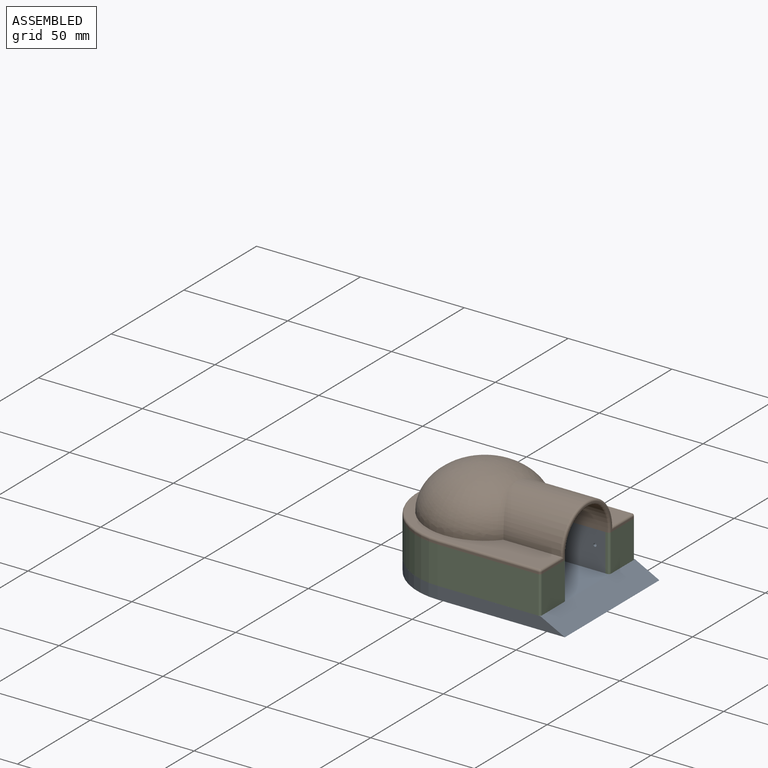
[diagram: assembled view]
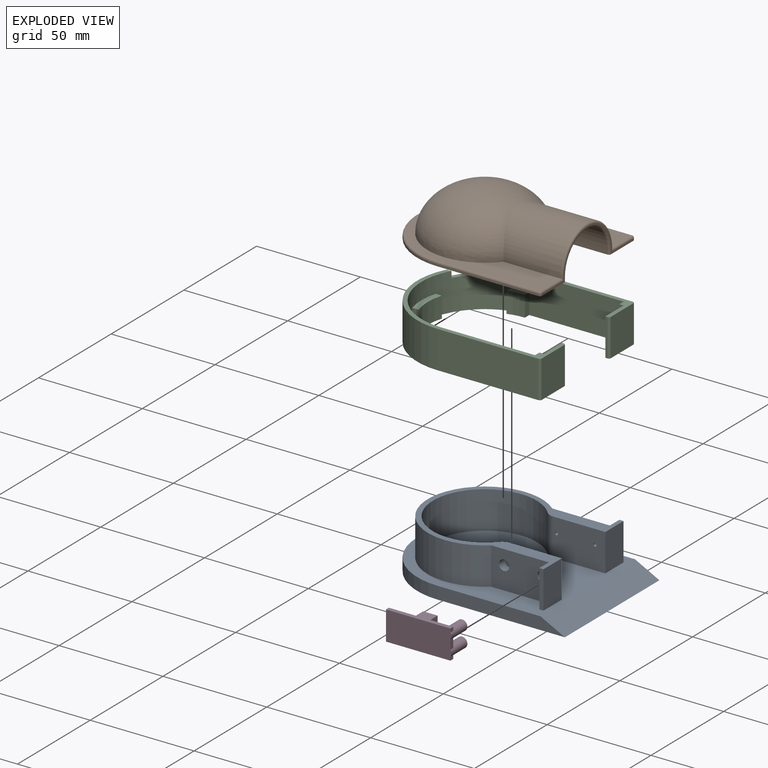
[diagram: exploded view]
GUIDED TOUR — MATED ASSEMBLY (Onshape document 584c455986016b1105d46dea, AutoMate assembly 584c455986016b1105d46dea_77e8dcf5dde47d9424bd23e5_f735e1928083b0ea91f91c92_default)

This assembly has 4 components, labeled P0..P3 below (a component is one placed occurrence of a part; the same part can appear more than once), held together by 3 mates. A mate is a constraint between two components; its type names the relative motion it leaves free:
  FASTENED — locks the two components together rigidly (no relative motion).
Axis/direction vectors are unit vectors and 'through' points are millimeter coordinates, both in the assembly's world frame.

MATES
  1. FASTENED "Fastened 3": P0 <-> P3, direction (0.000, -1.000, 0.000) through (42.50, -17.00, 17.00) mm
  2. FASTENED "Fastened 2": P0 <-> P1, direction (0.000, 0.000, -1.000) through (0.00, 0.00, 24.00) mm
  3. FASTENED "Fastened 1": P2 <-> P0, direction (-1.000, 0.000, 0.000) through (47.50, -21.25, 15.00) mm

ASSEMBLY ORDER
  1. P0 — the base component [order heuristic]
  2. P3 — core [order heuristic]
  3. P2 [order verified]
  4. P1 [order verified]
Order-tag legend:
  [order verified] — this step's position reverses a verified removal order: the component was checked to insert without passing through the ones already placed.
  [order heuristic] — the first 2 components form the assembly's core: parts whose collision-free extraction could not be verified, listed in mate-graph order.

Of the 4 components, 1 carries the full construction recipe — the FeatureScript program that regenerates the part's solid from scratch; the rest are supplied as boundary geometry only.
Each toured component is shown spotlighted twice — in the assembled view, then in the exploded view, where a leader line traces a displaced component back to its assembled socket (saturated green if recipe-attached, orange if geometry-only; every other component desaturated gray) — followed by its recipe or geometry summary and the mates that hold it.
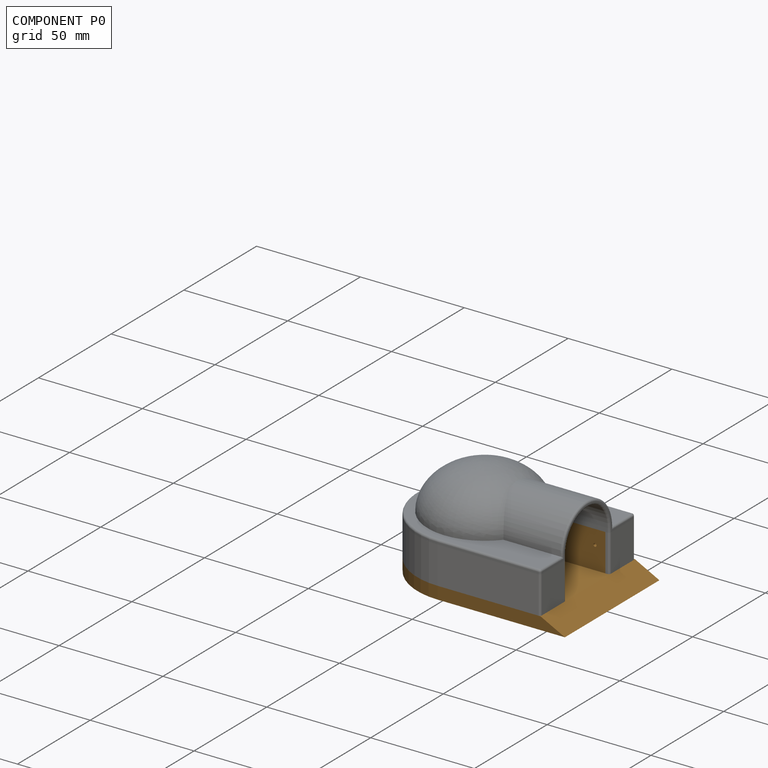
[diagram: component P0 — assembled]
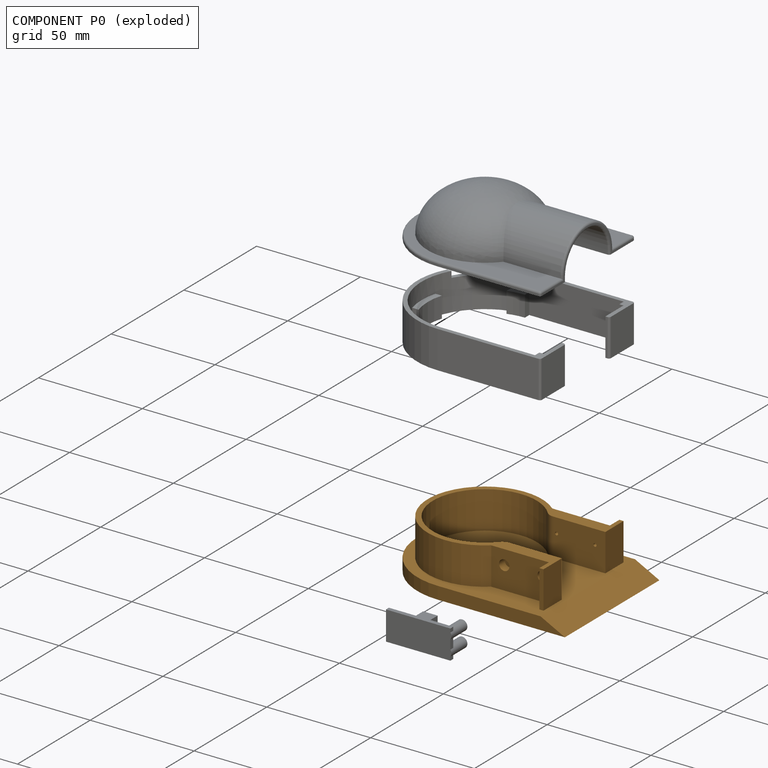
[diagram: component P0 — exploded]
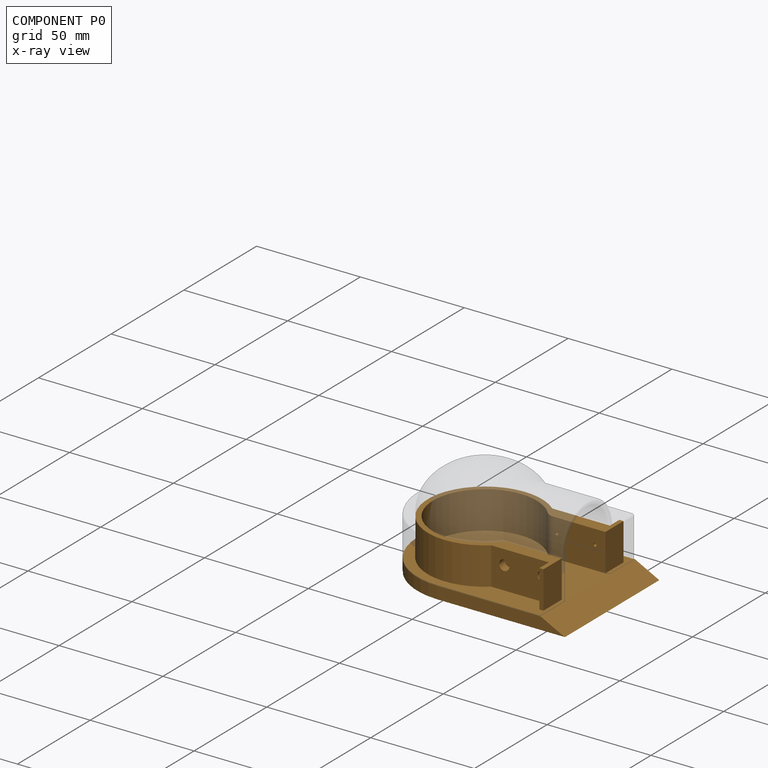
[diagram: component P0 — x-ray view]
COMPONENT P0 — geometry summary (no construction recipe available for this part):
  bounding box: 93.8 x 65.0 x 24.0 mm
  B-rep topology: 1 solid, 36 faces, 176 edges
  volume: 42210 mm^3 (29% of its bounding box)
  symmetry: mirror-symmetric across its y mid-plane
Held by: FASTENED mate "Fastened 3" to P3; FASTENED mate "Fastened 2" to P1; FASTENED mate "Fastened 1" to P2.
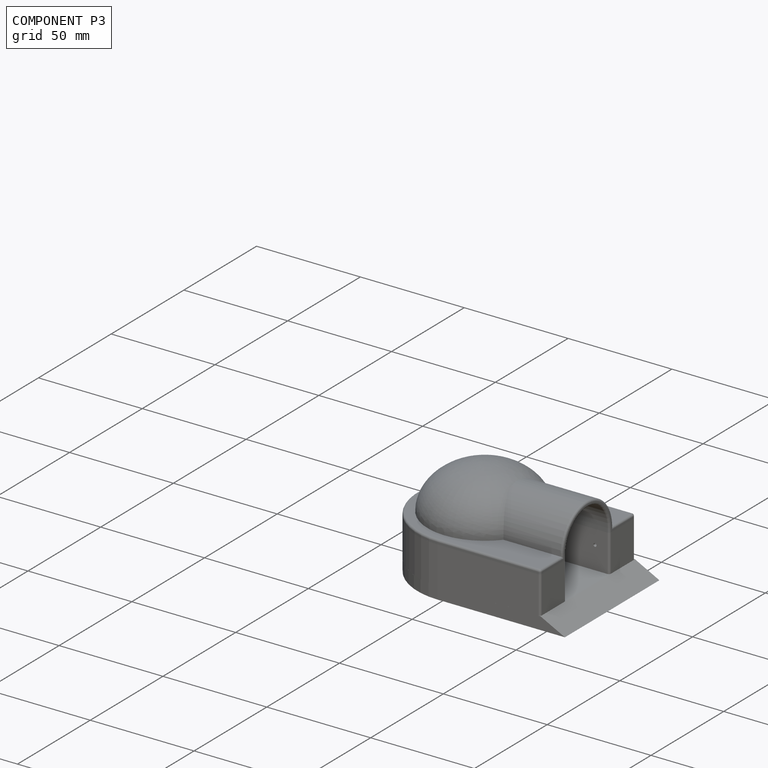
[diagram: component P3 — assembled]
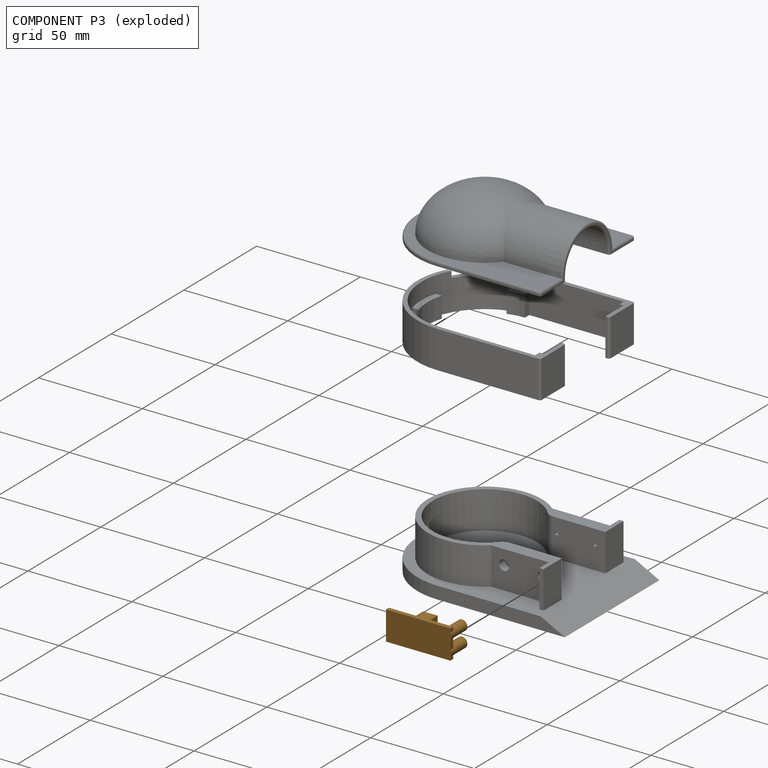
[diagram: component P3 — exploded]
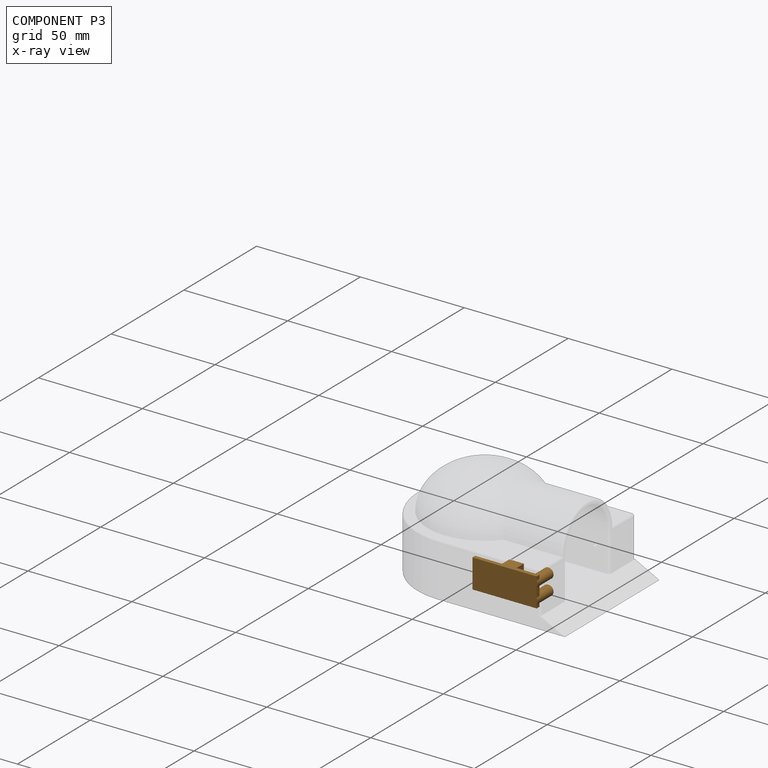
[diagram: component P3 — x-ray view]
COMPONENT P3 — geometry summary (no construction recipe available for this part):
  bounding box: 31.5 x 14.0 x 11.0 mm
  B-rep topology: 1 solid, 16 faces, 84 edges
  volume: 1471 mm^3 (30% of its bounding box)
Held by: FASTENED mate "Fastened 3" to P0.
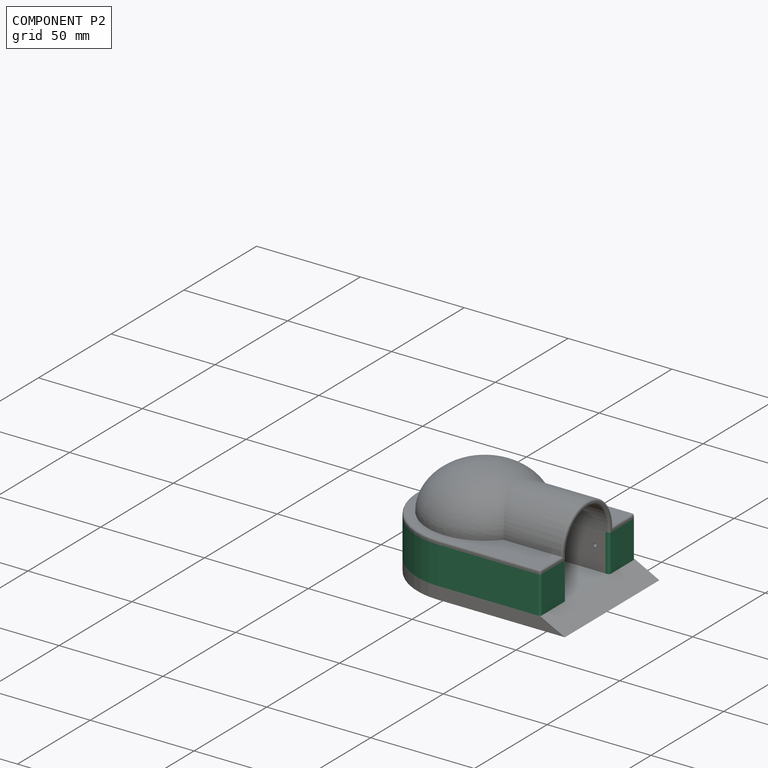
[diagram: component P2 — assembled]
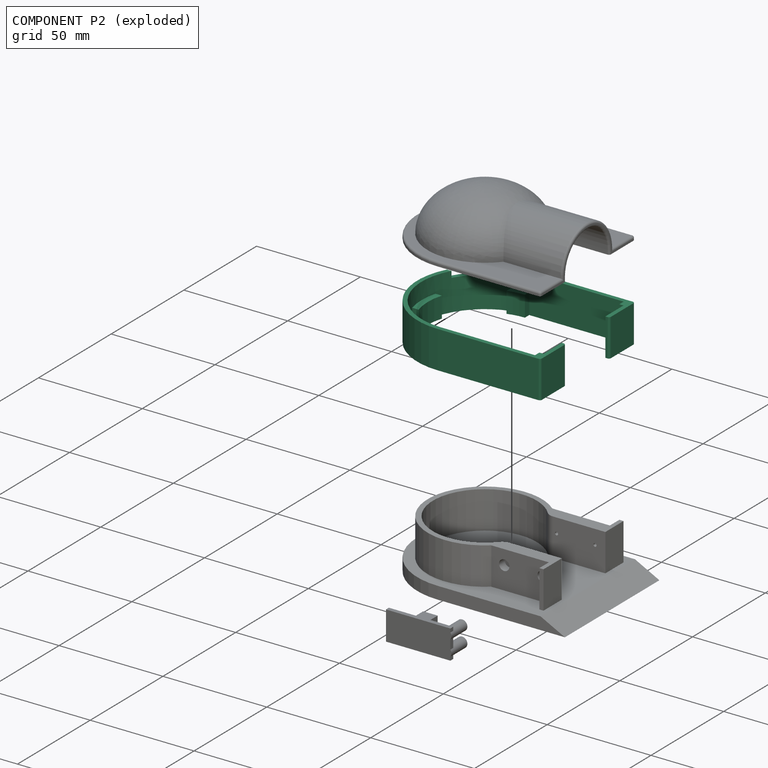
[diagram: component P2 — exploded]
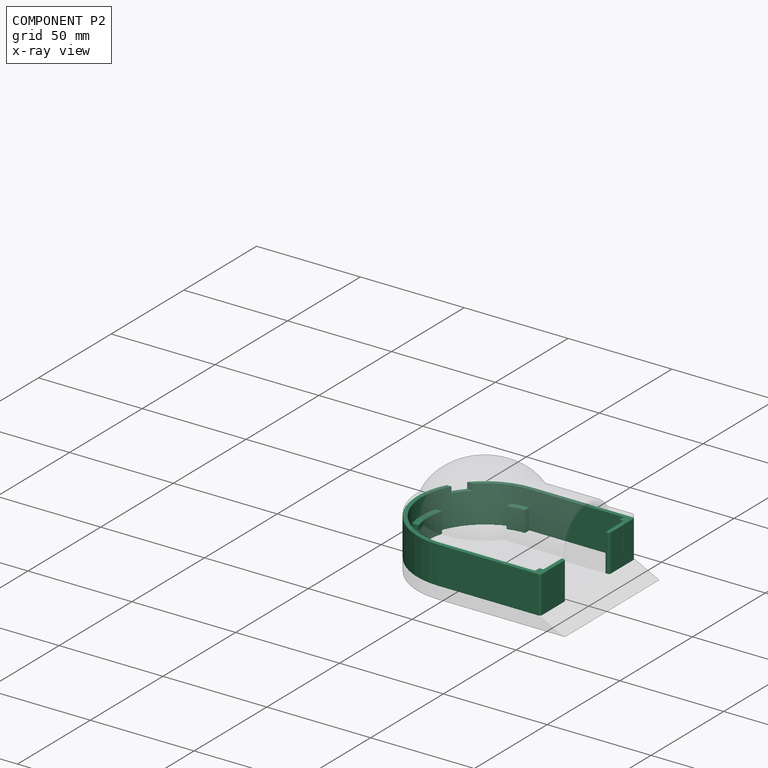
[diagram: component P2 — x-ray view]
COMPONENT P2 — recipe-attached (CADFS 00377070, mesh-verified: the recipe's output STEP matches this component's geometry to below the mesh-comparison resolution (tessellation chordal tolerance ~0.159 mm)).
Held by: FASTENED mate "Fastened 1" to P0.
Construction recipe (FeatureScript — the CAD program that rebuilds this solid; sketch coordinates are in the units given by the * unit suffixes, e.g. mm):

FeatureScript 2581;
import(path : "onshape/std/geometry.fs", version : "2581.0");
import(path : "onshape/std/common.fs", version : "2581.0");
const mm = millimeter;
const VERTEX = EntityType.VERTEX;
const EDGE = EntityType.EDGE;
const FACE = EntityType.FACE;
const BODY = EntityType.BODY;
function v(x, y){return vector(x, y);}
function OD(order){return orderDisambiguation(order);}
function OSD(set){return originalSetDisambiguation(set);}
function TD(topology){return topologyDisambiguation(topology);}
function TDD(query){return trueDependencyDisambiguation(query);}
function sQuery(a, b, c) {return sketchEntityQuery(a, b, c);}

annotation { "Feature Type Name" : "Feature", "Feature Type Description" : "" }
export const myFeature = defineFeature(function(context is Context, id is Id, definition is map)
    precondition{}
    {
        {
            var Q0;
            Q0=qCreatedBy(makeId("Top.planeOp"),FACE);
            var sketch = newSketch(context, id + "F0", { "sketchPlane" : qUnion([Q0])});
            skLineSegment(sketch, "E0.bottom", {"start": v(20, 15) * mm, "end": v(47.5, 15) * mm, "construction": true});
            skLineSegment(sketch, "E0.right", {"start": v(47.5, 15) * mm, "end": v(47.5, -15) * mm, "construction": true});
            skLineSegment(sketch, "E1", {"start": v(0, 0) * mm, "end": v(27.5, 0) * mm, "construction": true});
            skPoint(sketch, "E1.endSnap0", {"position": v(27.5, 0) * mm});
            skPoint(sketch, "E2.startSnap0", {"position": v(47.5, 0) * mm});
            skLineSegment(sketch, "E3", {"start": v(20, 15) * mm, "end": v(20, 15) * mm});
            skLineSegment(sketch, "E4", {"start": v(20, 15) * mm, "end": v(20, -15) * mm, "construction": true});
            skLineSegment(sketch, "E5", {"start": v(20, -15) * mm, "end": v(47.5, -15) * mm, "construction": true});
            skLineSegment(sketch, "E6", {"start": v(0, 32.5) * mm, "end": v(0, 32.5) * mm});
            skLineSegment(sketch, "E7", {"start": v(49.5, -15) * mm, "end": v(49.5, -32.5) * mm});
            skLineSegment(sketch, "E8", {"start": v(49.5, -32.5) * mm, "end": v(0, -32.5) * mm});
            skLineSegment(sketch, "E9", {"start": v(47.5, -15) * mm, "end": v(49.5, -15) * mm});
            skLineSegment(sketch, "E10", {"start": v(0, -32.5) * mm, "end": v(0, -32.5) * mm});
            skArc(sketch, "E11", {"start": v(0, -32.5) * mm, "mid": v(32.5, 0) * mm, "end": v(0, 32.5) * mm, "construction": true});
            skArc(sketch, "E12", {"start": v(0, 32.5) * mm, "mid": v(-32.5, 0) * mm, "end": v(0, -32.5) * mm});
            skLineSegment(sketch, "E13", {"start": v(0, -30.5) * mm, "end": v(0, -30.5) * mm});
            skLineSegment(sketch, "E14", {"start": v(0, 0) * mm, "end": v(-30.5, 0) * mm, "construction": true});
            skLineSegment(sketch, "E15", {"start": v(-30.5, 0) * mm, "end": v(-30.5, -8) * mm, "construction": true});
            skLineSegment(sketch, "E16", {"start": v(-30.5, -8) * mm, "end": v(-26.31, -8) * mm});
            skLineSegment(sketch, "E17.MirrorCS", {"start": v(49.5, 32.5) * mm, "end": v(0, 32.5) * mm});
            skLineSegment(sketch, "E18.MirrorCS", {"start": v(49.5, 15) * mm, "end": v(49.5, 32.5) * mm});
            skLineSegment(sketch, "E19.MirrorCS", {"start": v(47.5, 15) * mm, "end": v(49.5, 15) * mm});
            skLineSegment(sketch, "E20.MirrorCS", {"start": v(0, 30.5) * mm, "end": v(0, 30.5) * mm});
            skLineSegment(sketch, "E21.MirrorCS", {"start": v(-30.5, 8) * mm, "end": v(-26.31, 8) * mm});
            skLineSegment(sketch, "E22.MirrorCS", {"start": v(-30.5, 0) * mm, "end": v(-30.5, 8) * mm, "construction": true});
            skArc(sketch, "E23", {"start": v(-26.31, 8) * mm, "mid": v(-27.5, 0) * mm, "end": v(-26.31, -8) * mm});
            skArc(sketch, "E24", {"start": v(-26.31, -8) * mm, "mid": v(22.1, -16.37) * mm, "end": v(0, 27.5) * mm, "construction": true});
            skArc(sketch, "E25", {"start": v(0, 30.5) * mm, "mid": v(-18.52, 24.23) * mm, "end": v(-29.43, 8) * mm});
            skArc(sketch, "E26", {"start": v(0, -30.5) * mm, "mid": v(30.5, 0) * mm, "end": v(0, 30.5) * mm, "construction": true});
            skArc(sketch, "E27", {"start": v(-29.43, 8) * mm, "mid": v(-30.5, 0) * mm, "end": v(-29.43, -8) * mm});
            skArc(sketch, "E28", {"start": v(-29.43, -8) * mm, "mid": v(-18.52, -24.23) * mm, "end": v(0, -30.5) * mm});
            skLineSegment(sketch, "E29", {"start": v(47.5, -15) * mm, "end": v(47.5, -27.5) * mm});
            skLineSegment(sketch, "E30", {"start": v(47.5, -27.5) * mm, "end": v(45.5, -27.5) * mm});
            skLineSegment(sketch, "E31", {"start": v(45.5, -27.5) * mm, "end": v(45.5, -30.5) * mm});
            skLineSegment(sketch, "E32", {"start": v(0, -30.5) * mm, "end": v(45.5, -30.5) * mm});
            skLineSegment(sketch, "E33.MirrorCS", {"start": v(0, 30.5) * mm, "end": v(45.5, 30.5) * mm});
            skLineSegment(sketch, "E34.MirrorCS", {"start": v(45.5, 27.5) * mm, "end": v(45.5, 30.5) * mm});
            skLineSegment(sketch, "E35.MirrorCS", {"start": v(47.5, 27.5) * mm, "end": v(45.5, 27.5) * mm});
            skLineSegment(sketch, "E36.MirrorCS", {"start": v(47.5, 15) * mm, "end": v(47.5, 27.5) * mm});
            skLineSegment(sketch, "E37", {"start": v(0, 30.5) * mm, "end": v(0, 27.5) * mm});
            skLineSegment(sketch, "E38", {"start": v(0, 27.5) * mm, "end": v(-8, 27.5) * mm, "construction": true});
            skLineSegment(sketch, "E39", {"start": v(-8, 29.43) * mm, "end": v(-8, 26.31) * mm});
            skLineSegment(sketch, "E40", {"start": v(-8, 26.31) * mm, "end": v(-8, 26.31) * mm});
            skArc(sketch, "E41", {"start": v(0, 27.5) * mm, "mid": v(-4.04, 27.2) * mm, "end": v(-8, 26.31) * mm});
            skArc(sketch, "E42", {"start": v(-8, 26.31) * mm, "mid": v(-19.45, 19.45) * mm, "end": v(-26.31, 8) * mm, "construction": true});
            skLineSegment(sketch, "E43.MirrorCS", {"start": v(0, -30.5) * mm, "end": v(0, -27.5) * mm});
            skLineSegment(sketch, "E44.MirrorCS", {"start": v(-8, -29.43) * mm, "end": v(-8, -26.31) * mm});
            skArc(sketch, "E45.MirrorCS", {"start": v(0, -27.5) * mm, "mid": v(-4.04, -27.2) * mm, "end": v(-8, -26.31) * mm});
            skLineSegment(sketch, "E46", {"start": v(-26.31, 8) * mm, "end": v(-26.31, 15) * mm, "construction": true});
            skLineSegment(sketch, "E47", {"start": v(-26.31, 8) * mm, "end": v(-26.31, 22) * mm, "construction": true});
            skLineSegment(sketch, "E48", {"start": v(-26.31, 22) * mm, "end": v(-14.22, 22) * mm, "construction": true});
            skLineSegment(sketch, "E49", {"start": v(-26.31, 15) * mm, "end": v(-35.46, 15) * mm, "construction": true});
            skSolve(sketch);
        }
        {
            var Q0;
            Q0=makeQuery(id+"F0.imprint","IMPRINT",FACE,{"disambiguationData":[TD([[makeQuery(id+"F0.imprint","IMPRINT",EDGE,{"derivedFrom":sQuery(id+"F0.wireOp",EDGE,"E7")}),-1.0]])]});
            var Q1;
            {var subQ0=sQuery(id+"F0.wireOp",EDGE,"E48");var subQ1=sQuery(id+"F0.wireOp",EDGE,"E12");var subQ2=makeQuery(id+"F0.imprint","INTERSECT",VERTEX,{"derivedFrom":[subQ1,subQ0]});Q1=makeQuery(id+"F0.imprint","IMPRINT",FACE,{"disambiguationData":[TD([[makeQuery(id+"F0.imprint","IMPRINT",EDGE,{"disambiguationData":[TD([[subQ2,-1.0]])],"derivedFrom":subQ1}),1.0]])]});}
            var Q2;
            {var subQ0=sQuery(id+"F0.wireOp",EDGE,"E17.MirrorCS");Q2=makeQuery(id+"F0.imprint","IMPRINT",FACE,{"disambiguationData":[TD([[makeQuery(id+"F0.imprint","IMPRINT",EDGE,{"derivedFrom":subQ0}),1.0]])]});}
            extrude(context, id + "F1", {"entities" : qUnion([Q0, Q1, Q2]), "depth" : 18 * mm});
        }
        {
            var Q0;
            Q0=makeQuery(id+"F1.opExtrude","SWEPT_EDGE",EDGE,{"disambiguationData":[OSD([sQuery(id+"F0.wireOp",EDGE,"E18.MirrorCS"),sQuery(id+"F0.wireOp",EDGE,"E19.MirrorCS")])]});
            var Q1;
            Q1=makeQuery(id+"F1.opExtrude","SWEPT_EDGE",EDGE,{"disambiguationData":[OSD([sQuery(id+"F0.wireOp",EDGE,"E7"),sQuery(id+"F0.wireOp",EDGE,"E9")])]});
            var Q2;
            Q2=makeQuery(id+"F1.opExtrude","SWEPT_EDGE",EDGE,{"disambiguationData":[OSD([sQuery(id+"F0.wireOp",EDGE,"E17.MirrorCS"),sQuery(id+"F0.wireOp",EDGE,"E18.MirrorCS")])]});
            var Q3;
            Q3=makeQuery(id+"F1.opExtrude","SWEPT_EDGE",EDGE,{"disambiguationData":[OSD([sQuery(id+"F0.wireOp",EDGE,"E7"),sQuery(id+"F0.wireOp",EDGE,"E8")])]});
            fillet(context, id + "F2", {"entities" : qUnion([Q0, Q1, Q2, Q3]), "radius" : 1 * mm, "tangentPropagation" : true, "allowEdgeOverflow" : false});
        }
        {
            var Q0;
            {var subQ0=sQuery(id+"F0.wireOp",EDGE,"E37");Q0=makeQuery(id+"F0.imprint","IMPRINT",FACE,{"disambiguationData":[TD([[makeQuery(id+"F0.imprint","IMPRINT",EDGE,{"derivedFrom":subQ0}),-1.0]])]});}
            var Q1;
            {var subQ0=sQuery(id+"F0.wireOp",EDGE,"E23");Q1=makeQuery(id+"F0.imprint","IMPRINT",FACE,{"disambiguationData":[TD([[makeQuery(id+"F0.imprint","IMPRINT",EDGE,{"derivedFrom":subQ0}),-1.0]])]});}
            var Q2;
            {var subQ0=sQuery(id+"F0.wireOp",EDGE,"E43.MirrorCS");Q2=makeQuery(id+"F0.imprint","IMPRINT",FACE,{"disambiguationData":[TD([[makeQuery(id+"F0.imprint","IMPRINT",EDGE,{"derivedFrom":subQ0}),1.0]])]});}
            extrude(context, id + "F3", {"entities" : qUnion([Q0, Q1, Q2]), "operationType" : NewBodyOperationType.ADD, "depth" : 10 * mm});
        }
        {
            var Q0;
            Q0=makeQuery(id+"F1.opExtrude","CAP_FACE",FACE,{"disambiguationData":[OSD([sQuery(id+"F0.wireOp",EDGE,"E7"),sQuery(id+"F0.wireOp",EDGE,"E8"),sQuery(id+"F0.wireOp",EDGE,"E9"),sQuery(id+"F0.wireOp",EDGE,"E12"),sQuery(id+"F0.wireOp",EDGE,"E17.MirrorCS"),sQuery(id+"F0.wireOp",EDGE,"E18.MirrorCS"),sQuery(id+"F0.wireOp",EDGE,"E19.MirrorCS"),sQuery(id+"F0.wireOp",EDGE,"E25"),sQuery(id+"F0.wireOp",EDGE,"E27"),sQuery(id+"F0.wireOp",EDGE,"E28"),sQuery(id+"F0.wireOp",EDGE,"E30"),sQuery(id+"F0.wireOp",EDGE,"E31"),sQuery(id+"F0.wireOp",EDGE,"E32"),sQuery(id+"F0.wireOp",EDGE,"E29"),sQuery(id+"F0.wireOp",EDGE,"E33.MirrorCS"),sQuery(id+"F0.wireOp",EDGE,"E34.MirrorCS"),sQuery(id+"F0.wireOp",EDGE,"E35.MirrorCS"),sQuery(id+"F0.wireOp",EDGE,"E36.MirrorCS")])],"isStart":false});
            var sketch = newSketch(context, id + "F4", { "sketchPlane" : qUnion([Q0])});
            skLineSegment(sketch, "E50.0", {"start": v(-26.31, 15) * mm, "end": v(-35.46, 15) * mm});
            skLineSegment(sketch, "E50.1", {"start": v(-26.31, 22) * mm, "end": v(-14.22, 22) * mm});
            skSolve(sketch);
        }
        {
            var Q0;
            {var subQ0=sQuery(id+"F4.wireOp",EDGE,"E50.0");var subQ1=makeQuery(id+"F1.opExtrude","CAP_EDGE",EDGE,{"disambiguationData":[OSD([sQuery(id+"F0.wireOp",EDGE,"E12")])],"isStart":false});var subQ2=makeQuery(id+"F4.imprint","INTERSECT",VERTEX,{"derivedFrom":[subQ1,subQ0]});Q0=makeQuery(id+"F4.imprint","IMPRINT",FACE,{"disambiguationData":[TD([[makeQuery(id+"F4.imprint","IMPRINT",EDGE,{"disambiguationData":[TD([[subQ2,1.0]])],"derivedFrom":subQ1}),1.0]])]});}
            extrude(context, id + "F5", {"entities" : qUnion([Q0]), "operationType" : NewBodyOperationType.REMOVE, "oppositeDirection" : true, "depth" : 3 * mm});
        }
    });
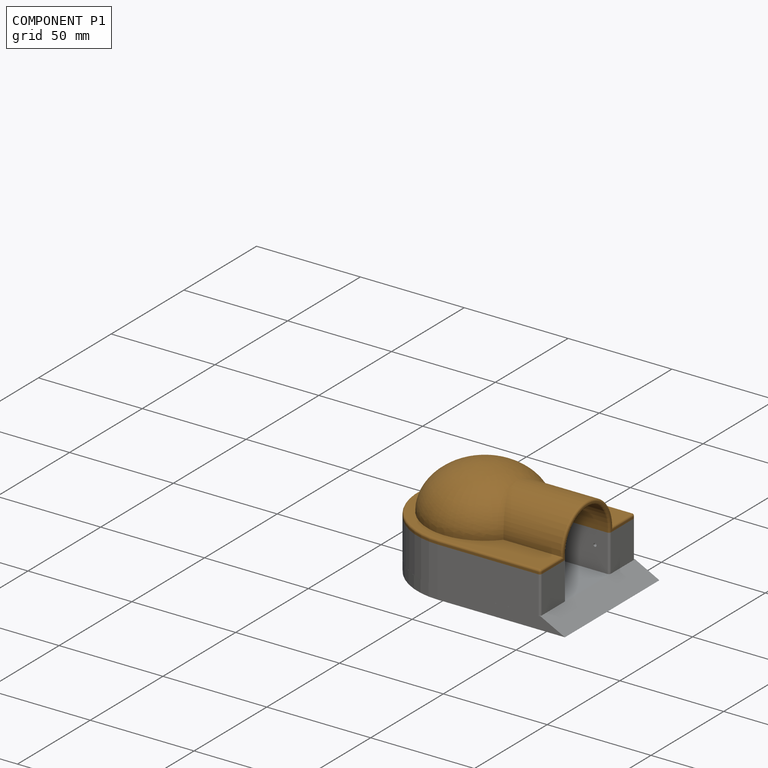
[diagram: component P1 — assembled]
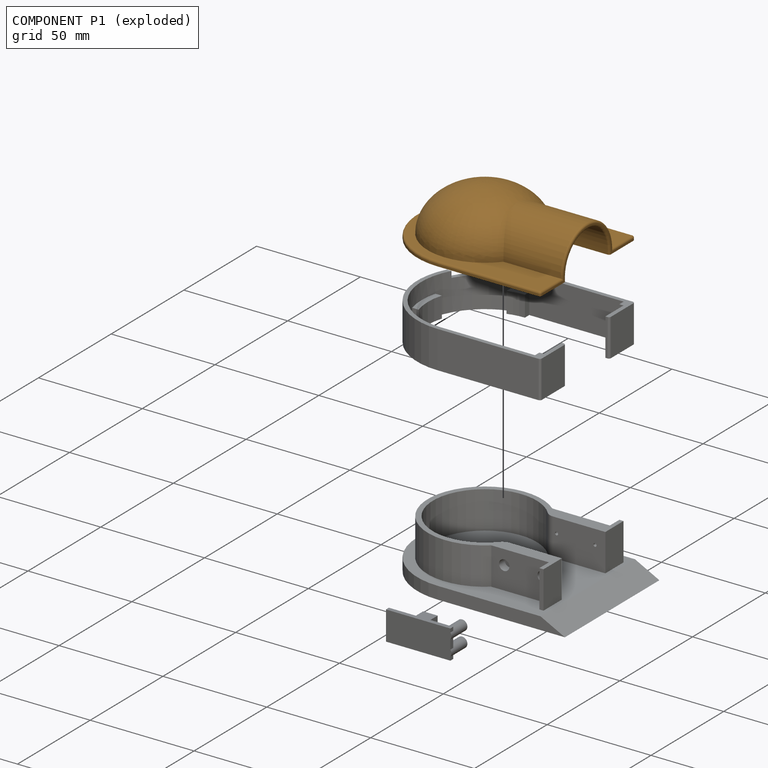
[diagram: component P1 — exploded]
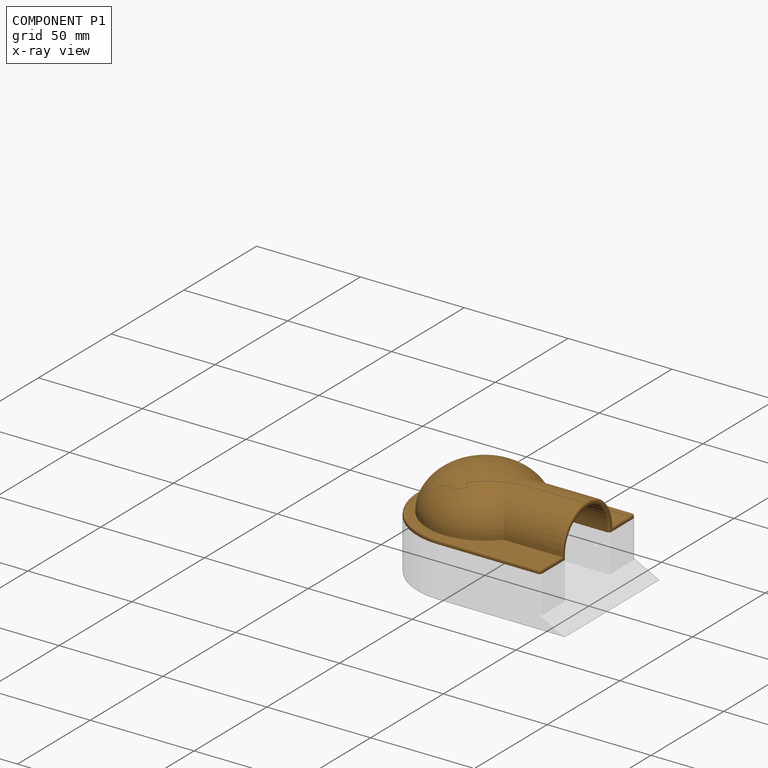
[diagram: component P1 — x-ray view]
COMPONENT P1 — geometry summary (no construction recipe available for this part):
  bounding box: 84.7 x 70.4 x 23.1 mm
  B-rep topology: 1 solid, 29 faces, 140 edges
  volume: 15951 mm^3 (12% of its bounding box)
  symmetry: mirror-symmetric across its y mid-plane
Held by: FASTENED mate "Fastened 2" to P0.
PROVENANCE & LICENSES
Assembly (occurrences, transforms, mates, per-part STEP geometry): AutoMate dataset, Zenodo record 7776208, CC0.
Construction recipes: CADFS (HuggingFace VladPyatov/CADFS, CC-BY-4.0, layered over the ABC dataset), FeatureScript reconstruction programs keyed by ABC model id.
Join: ABC meta listings map ABC model id -> Onshape documentId; within a shared document, parts are matched by geometric signature (bounding-box dims + volume at 0.1% relative tolerance, exact B-rep face/solid counts).
Verification: 1 of this assembly's 4 components carries a recipe attachment, and every attachment is mesh-verified: the CADFS STEP and the AutoMate member STEP were compared as meshes in their shared local frame (symmetric sampled-point-to-mesh distance); worst across the 1 attachment: below the mesh-comparison resolution (tessellation chordal tolerance ~0.159 mm) on a 106 mm part.
Renders: orthographic iso camera (az 35 / el 25); the floor grid conveys scale (grid pitch printed in each image; no ruler). In the exploded view each component is displaced by its stored offset vector: the offsets alone carry the explosion direction (mate normal/axis signs are not orientation cues and do not encode it), and separation distances are assigned per mate-chain, not proportionally to assembly-order depth.
